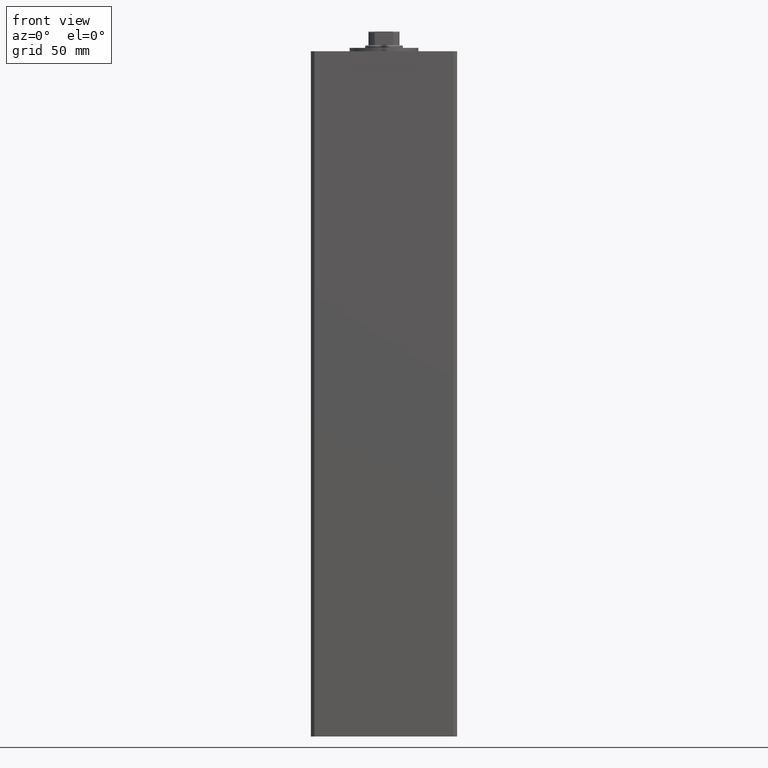
[diagram: clean part render]
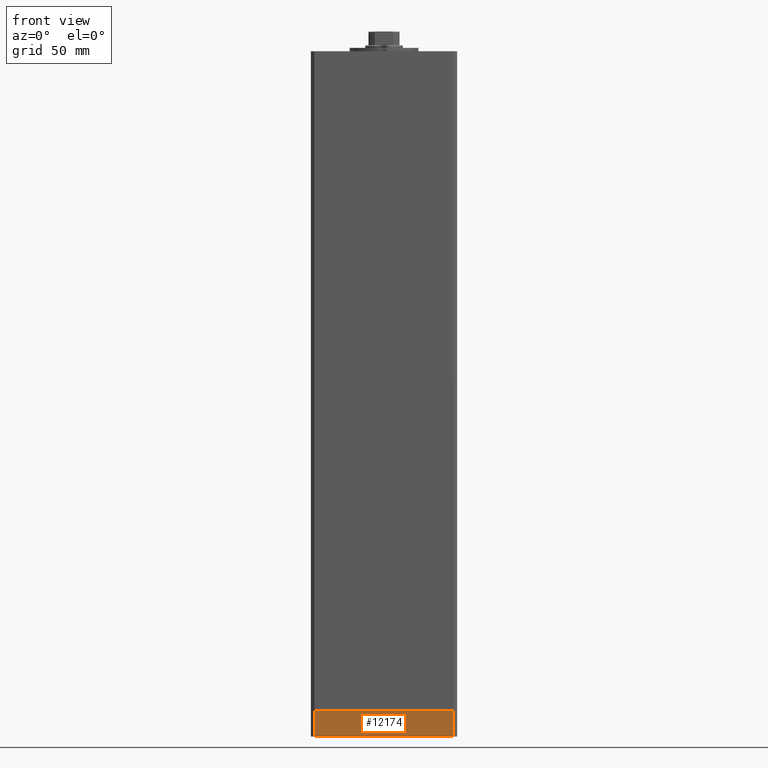
[diagram: same view with one face highlighted and labeled with its STEP entity id]
A machine part, front view. The second image highlights one B-rep face of the part: STEP entity #12174.
In plain terms, the highlighted planar face has unit normal (-0, -1, -0).
Its self-contained STEP definition (entity closure, byte-faithful):
#108 = DIRECTION ( 'NONE',  ( 0.000000000000000000, 0.000000000000000000, 1.000000000000000000 ) ) ;
#3056 = EDGE_CURVE ( 'NONE', #45059, #38710, #36241, .T. ) ;
#4762 = CARTESIAN_POINT ( 'NONE',  ( -40.49999999999999289, -37.50000000000002132, -15.00000000000000000 ) ) ;
#4880 = CARTESIAN_POINT ( 'NONE',  ( -40.49999999999999289, -37.50000000000002132, -15.00000000000000000 ) ) ;
#8370 = VERTEX_POINT ( 'NONE', #12884 ) ;
#8377 = LINE ( 'NONE', #32391, #13930 ) ;
#8651 = DIRECTION ( 'NONE',  ( 1.000000000000000000, 1.713307136767217096E-16, 0.000000000000000000 ) ) ;
#8918 = EDGE_LOOP ( 'NONE', ( #39766, #24265, #48855, #48595 ) ) ;
#12174 = ADVANCED_FACE ( 'NONE', ( #21486 ), #21221, .T. ) ;
#12884 = CARTESIAN_POINT ( 'NONE',  ( -40.49999999999999289, -37.50000000000002132, -15.00000000000000000 ) ) ;
#12939 = EDGE_CURVE ( 'NONE', #8370, #19224, #16877, .T. ) ;
#13930 = VECTOR ( 'NONE', #39775, 1000.000000000000000 ) ;
#15413 = CARTESIAN_POINT ( 'NONE',  ( 40.50000000000000000, -37.50000000000000711, -15.00000000000000000 ) ) ;
#16877 = LINE ( 'NONE', #4762, #43207 ) ;
#17279 = CARTESIAN_POINT ( 'NONE',  ( 40.50000000000000000, -37.50000000000000711, 0.000000000000000000 ) ) ;
#19224 = VERTEX_POINT ( 'NONE', #29533 ) ;
#20705 = DIRECTION ( 'NONE',  ( 1.000000000000000000, 1.713307136767217096E-16, 0.000000000000000000 ) ) ;
#20844 = DIRECTION ( 'NONE',  ( 0.000000000000000000, 0.000000000000000000, 1.000000000000000000 ) ) ;
#20961 = DIRECTION ( 'NONE',  ( 1.713307136767217096E-16, -1.000000000000000000, 0.000000000000000000 ) ) ;
#21221 = PLANE ( 'NONE',  #30567 ) ;
#21486 = FACE_OUTER_BOUND ( 'NONE', #8918, .T. ) ;
#23228 = CARTESIAN_POINT ( 'NONE',  ( 40.50000000000000000, -37.50000000000000711, -15.00000000000000000 ) ) ;
#24265 = ORIENTED_EDGE ( 'NONE', *, *, #12939, .F. ) ;
#24371 = EDGE_CURVE ( 'NONE', #8370, #45059, #8377, .T. ) ;
#25380 = EDGE_CURVE ( 'NONE', #19224, #38710, #43811, .T. ) ;
#29533 = CARTESIAN_POINT ( 'NONE',  ( -40.49999999999999289, -37.50000000000002132, 0.000000000000000000 ) ) ;
#30567 = AXIS2_PLACEMENT_3D ( 'NONE', #4880, #20961, #20705 ) ;
#32391 = CARTESIAN_POINT ( 'NONE',  ( -40.49999999999999289, -37.50000000000002132, -15.00000000000000000 ) ) ;
#35894 = CARTESIAN_POINT ( 'NONE',  ( -40.49999999999999289, -37.50000000000002132, 0.000000000000000000 ) ) ;
#36241 = LINE ( 'NONE', #15413, #44922 ) ;
#38710 = VERTEX_POINT ( 'NONE', #17279 ) ;
#39766 = ORIENTED_EDGE ( 'NONE', *, *, #25380, .F. ) ;
#39775 = DIRECTION ( 'NONE',  ( 1.000000000000000000, 1.713307136767217096E-16, 0.000000000000000000 ) ) ;
#43207 = VECTOR ( 'NONE', #20844, 1000.000000000000000 ) ;
#43811 = LINE ( 'NONE', #35894, #45144 ) ;
#44922 = VECTOR ( 'NONE', #108, 1000.000000000000000 ) ;
#45059 = VERTEX_POINT ( 'NONE', #23228 ) ;
#45144 = VECTOR ( 'NONE', #8651, 1000.000000000000000 ) ;
#48595 = ORIENTED_EDGE ( 'NONE', *, *, #3056, .T. ) ;
#48855 = ORIENTED_EDGE ( 'NONE', *, *, #24371, .T. ) ;